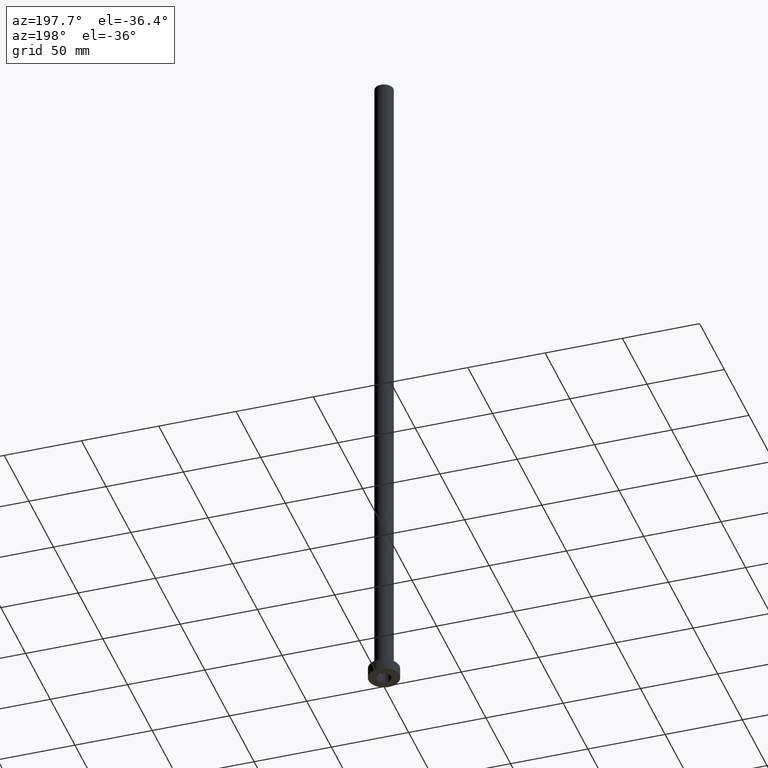
[diagram: clean part render]
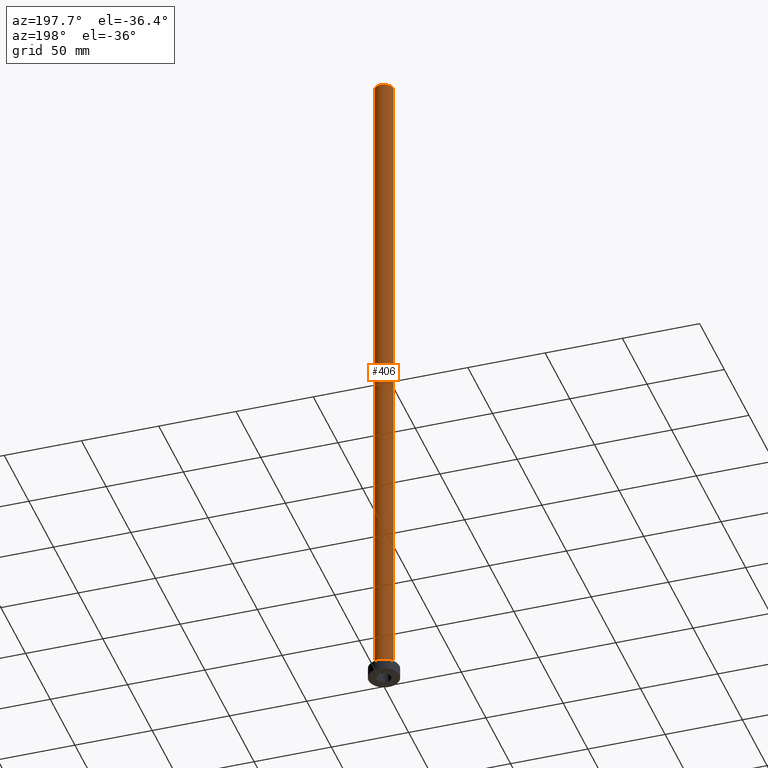
[diagram: same view with one face highlighted and labeled with its STEP entity id]
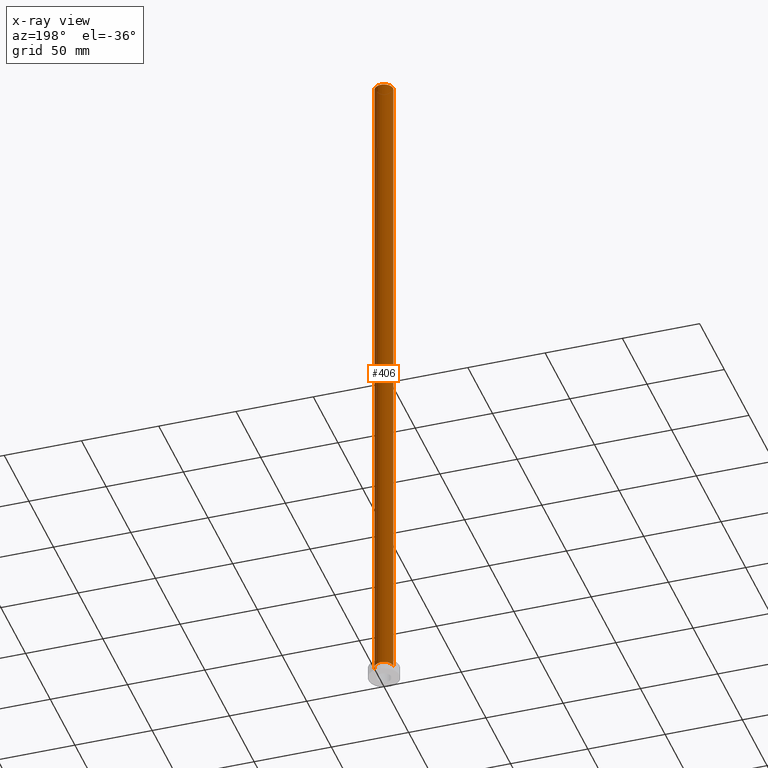
[diagram: x-ray of the same camera — body ghosted, the highlighted face saturated]
A machine part, auxiliary view. The second image highlights one B-rep face of the part: STEP entity #406.
The next image is the same camera in x-ray: the body ghosted, the highlighted face saturated — about 0% of this face is hidden behind the body in this view.
In plain terms, the highlighted cylindrical surface (edge-blend (fillet) strip) has radius 6 mm, axis along (-0, -0, -1).
Its self-contained STEP definition (entity closure, byte-faithful):
#34 = DIRECTION ( 'NONE',  ( 0.000000000000000000, 0.000000000000000000, 1.000000000000000000 ) ) ;
#37 = CARTESIAN_POINT ( 'NONE',  ( 0.000000000000000000, 0.000000000000000000, 450.0000000000000000 ) ) ;
#49 = CIRCLE ( 'NONE', #373, 6.000000000000000888 ) ;
#53 = VERTEX_POINT ( 'NONE', #308 ) ;
#62 = LINE ( 'NONE', #140, #439 ) ;
#79 = DIRECTION ( 'NONE',  ( 1.000000000000000000, 0.000000000000000000, 0.000000000000000000 ) ) ;
#83 = ORIENTED_EDGE ( 'NONE', *, *, #384, .T. ) ;
#89 = DIRECTION ( 'NONE',  ( -0.000000000000000000, -0.000000000000000000, -1.000000000000000000 ) ) ;
#119 = CARTESIAN_POINT ( 'NONE',  ( -6.000000000000000888, 0.000000000000000000, 7.699999999999985079 ) ) ;
#133 = CARTESIAN_POINT ( 'NONE',  ( 6.000000000000000888, 7.347880794884120722E-16, 450.0000000000000000 ) ) ;
#140 = CARTESIAN_POINT ( 'NONE',  ( -6.000000000000000888, 0.000000000000000000, 450.0000000000000000 ) ) ;
#176 = EDGE_CURVE ( 'NONE', #309, #427, #62, .T. ) ;
#181 = CARTESIAN_POINT ( 'NONE',  ( -6.000000000000000888, 0.000000000000000000, 450.0000000000000000 ) ) ;
#186 = ORIENTED_EDGE ( 'NONE', *, *, #176, .F. ) ;
#192 = DIRECTION ( 'NONE',  ( -0.000000000000000000, -0.000000000000000000, -1.000000000000000000 ) ) ;
#195 = LINE ( 'NONE', #225, #457 ) ;
#197 = DIRECTION ( 'NONE',  ( -1.000000000000000000, 0.000000000000000000, 0.000000000000000000 ) ) ;
#219 = DIRECTION ( 'NONE',  ( 0.000000000000000000, 0.000000000000000000, 1.000000000000000000 ) ) ;
#221 = VERTEX_POINT ( 'NONE', #133 ) ;
#225 = CARTESIAN_POINT ( 'NONE',  ( 6.000000000000000888, 7.347880794884120722E-16, 450.0000000000000000 ) ) ;
#250 = ORIENTED_EDGE ( 'NONE', *, *, #361, .T. ) ;
#265 = EDGE_CURVE ( 'NONE', #221, #309, #337, .T. ) ;
#294 = ORIENTED_EDGE ( 'NONE', *, *, #265, .F. ) ;
#303 = CYLINDRICAL_SURFACE ( 'NONE', #352, 6.000000000000000888 ) ;
#304 = AXIS2_PLACEMENT_3D ( 'NONE', #37, #34, #79 ) ;
#308 = CARTESIAN_POINT ( 'NONE',  ( 6.000000000000000888, 7.347880794884120722E-16, 7.699999999999985079 ) ) ;
#309 = VERTEX_POINT ( 'NONE', #181 ) ;
#311 = DIRECTION ( 'NONE',  ( -0.000000000000000000, -0.000000000000000000, -1.000000000000000000 ) ) ;
#337 = CIRCLE ( 'NONE', #304, 6.000000000000000888 ) ;
#352 = AXIS2_PLACEMENT_3D ( 'NONE', #398, #192, #197 ) ;
#357 = DIRECTION ( 'NONE',  ( 1.000000000000000000, 0.000000000000000000, 0.000000000000000000 ) ) ;
#361 = EDGE_CURVE ( 'NONE', #53, #427, #49, .T. ) ;
#373 = AXIS2_PLACEMENT_3D ( 'NONE', #456, #219, #357 ) ;
#384 = EDGE_CURVE ( 'NONE', #221, #53, #195, .T. ) ;
#395 = FACE_OUTER_BOUND ( 'NONE', #429, .T. ) ;
#398 = CARTESIAN_POINT ( 'NONE',  ( 0.000000000000000000, 0.000000000000000000, 450.0000000000000000 ) ) ;
#406 = ADVANCED_FACE ( 'NONE', ( #395 ), #303, .T. ) ;
#427 = VERTEX_POINT ( 'NONE', #119 ) ;
#429 = EDGE_LOOP ( 'NONE', ( #294, #83, #250, #186 ) ) ;
#439 = VECTOR ( 'NONE', #311, 1000.000000000000000 ) ;
#456 = CARTESIAN_POINT ( 'NONE',  ( 0.000000000000000000, 0.000000000000000000, 7.699999999999985079 ) ) ;
#457 = VECTOR ( 'NONE', #89, 1000.000000000000000 ) ;